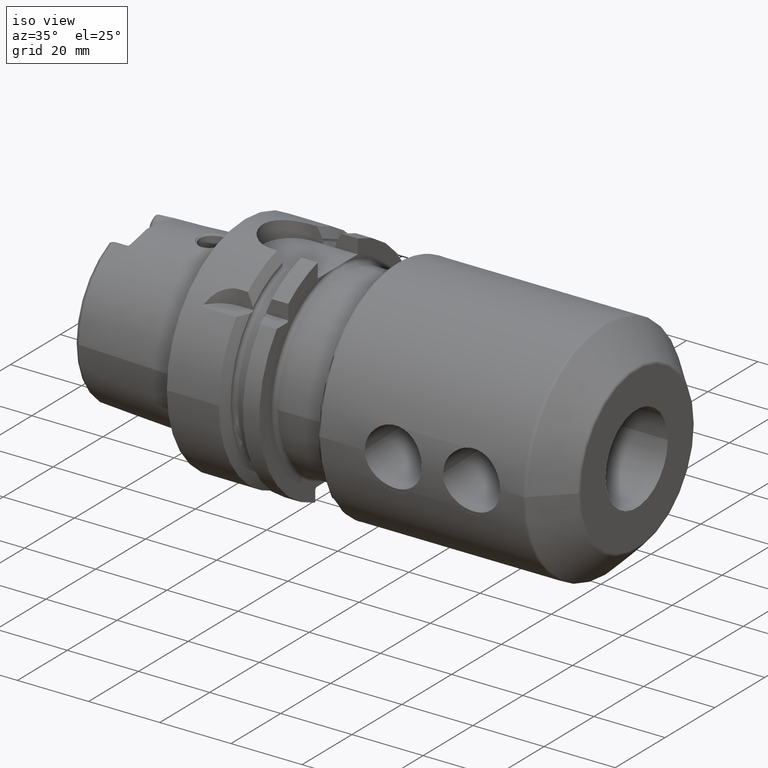
[diagram: clean part render]
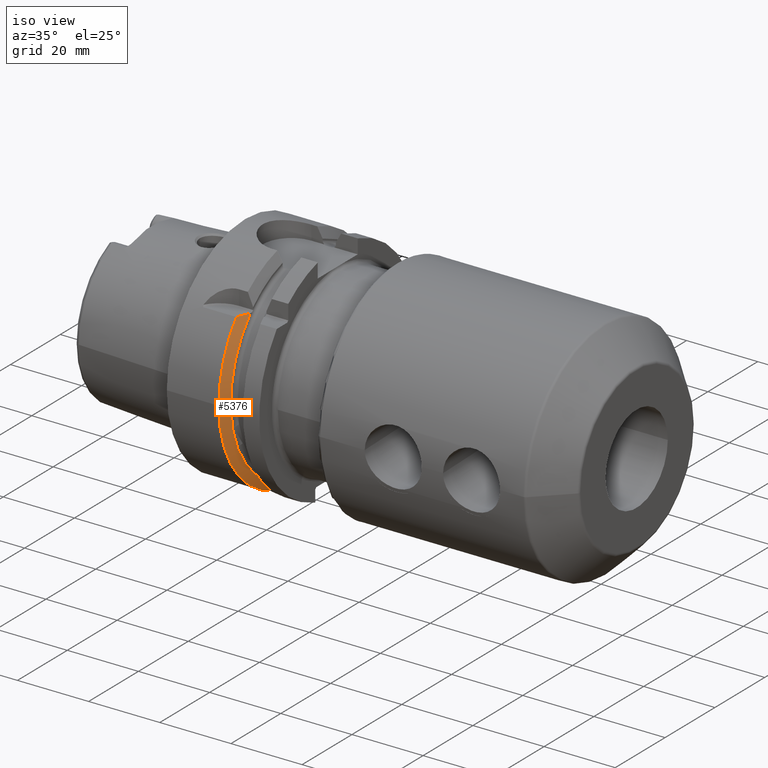
[diagram: same view with one face highlighted and labeled with its STEP entity id]
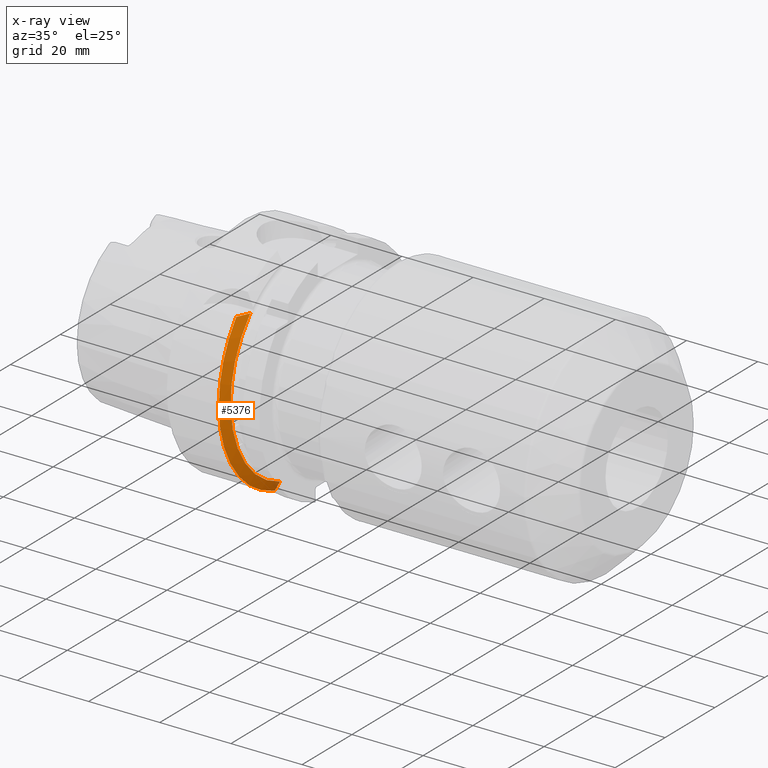
[diagram: x-ray of the same camera — body ghosted, the highlighted face saturated]
A machine part, iso view. The second image highlights one B-rep face of the part: STEP entity #5376.
The next image is the same camera in x-ray: the body ghosted, the highlighted face saturated — about 2% of this face is hidden behind the body in this view.
In plain terms, the highlighted conical surface has half-angle 60 deg.
Its self-contained STEP definition (entity closure, byte-faithful):
#1106=CARTESIAN_POINT('',(1.462250092524E1,0.E0,0.E0));
#1107=DIRECTION('',(1.E0,0.E0,0.E0));
#1108=DIRECTION('',(0.E0,-7.764663384879E-1,6.301587301587E-1));
#1109=AXIS2_PLACEMENT_3D('',#1106,#1107,#1108);
#1596=CARTESIAN_POINT('',(1.6125E1,-2.100115501712E1,1.985E1));
#1597=CARTESIAN_POINT('',(1.597384221917E1,-2.136140971936E1,1.985E1));
#1598=CARTESIAN_POINT('',(1.566115300621E1,-2.209786160622E1,1.985E1));
#1599=CARTESIAN_POINT('',(1.516255881786E1,-2.324577082409E1,1.985E1));
#1600=CARTESIAN_POINT('',(1.480632619355E1,-2.404863363206E1,1.985E1));
#1601=CARTESIAN_POINT('',(1.462250092524E1,-2.445868966237E1,1.985E1));
#1603=CARTESIAN_POINT('',(1.6125E1,0.E0,0.E0));
#1604=DIRECTION('',(1.E0,0.E0,0.E0));
#1605=DIRECTION('',(0.E0,-7.267440361428E-1,6.869083679290E-1));
#1606=AXIS2_PLACEMENT_3D('',#1603,#1604,#1605);
#1608=CARTESIAN_POINT('',(1.6125E1,-9.0175E0,-2.745461174016E1));
#1609=CARTESIAN_POINT('',(1.596600098125E1,-9.0175E0,-2.774448053791E1));
#1610=CARTESIAN_POINT('',(1.564270948849E1,-9.0175E0,-2.833297398512E1));
#1611=CARTESIAN_POINT('',(1.514210518984E1,-9.0175E0,-2.924158789478E1));
#1612=CARTESIAN_POINT('',(1.479749126019E1,-9.0175E0,-2.986536377611E1));
#1613=CARTESIAN_POINT('',(1.462250092524E1,-9.0175E0,-3.018169467989E1));
#1736=CARTESIAN_POINT('',(1.462250092524E1,0.E0,0.E0));
#1737=DIRECTION('',(1.E0,0.E0,0.E0));
#1738=DIRECTION('',(0.E0,-1.E0,0.E0));
#1739=AXIS2_PLACEMENT_3D('',#1736,#1737,#1738);
#3240=CARTESIAN_POINT('',(1.462250092524E1,-3.15E1,0.E0));
#3241=VERTEX_POINT('',#3240);
#3380=CARTESIAN_POINT('',(1.462250092524E1,-9.0175E0,-3.018169467989E1));
#3381=VERTEX_POINT('',#3380);
#3386=CARTESIAN_POINT('',(1.6125E1,-9.0175E0,-2.745461174016E1));
#3388=VERTEX_POINT('',#3386);
#3410=CARTESIAN_POINT('',(1.6125E1,-2.100115501712E1,1.985E1));
#3412=VERTEX_POINT('',#3410);
#3428=VERTEX_POINT('',#1601);
#5361=CARTESIAN_POINT('',(1.537375046262E1,0.E0,0.E0));
#5362=DIRECTION('',(-1.E0,0.E0,0.E0));
#5363=DIRECTION('',(0.E0,1.E0,0.E0));
#5364=AXIS2_PLACEMENT_3D('',#5361,#5362,#5363);
#5365=CONICAL_SURFACE('',#5364,3.019879763210E1,6.E1);
#5367=ORIENTED_EDGE('',*,*,#5366,.F.);
#5368=ORIENTED_EDGE('',*,*,#5282,.T.);
#5370=ORIENTED_EDGE('',*,*,#5369,.T.);
#5372=ORIENTED_EDGE('',*,*,#5371,.F.);
#5373=ORIENTED_EDGE('',*,*,#4797,.F.);
#5374=EDGE_LOOP('',(#5367,#5368,#5370,#5372,#5373));
#5375=FACE_OUTER_BOUND('',#5374,.F.);
#5376=ADVANCED_FACE('',(#5375),#5365,.T.);
#1110=CIRCLE('',#1109,3.15E1);
#1602=B_SPLINE_CURVE_WITH_KNOTS('',3,(#1596,#1597,#1598,#1599,#1600,#1601),
.UNSPECIFIED.,.F.,.F.,(4,1,1,4),(0.E0,3.333333333333E-1,6.666666666667E-1,1.E0),
.UNSPECIFIED.);
#1607=CIRCLE('',#1606,2.889759526419E1);
#1614=B_SPLINE_CURVE_WITH_KNOTS('',3,(#1608,#1609,#1610,#1611,#1612,#1613),
.UNSPECIFIED.,.F.,.F.,(4,1,1,4),(0.E0,3.333333333333E-1,6.666666666667E-1,1.E0),
.UNSPECIFIED.);
#1740=CIRCLE('',#1739,3.15E1);
#4797=EDGE_CURVE('',#3428,#3241,#1110,.T.);
#5282=EDGE_CURVE('',#3412,#3388,#1607,.T.);
#5366=EDGE_CURVE('',#3412,#3428,#1602,.T.);
#5369=EDGE_CURVE('',#3388,#3381,#1614,.T.);
#5371=EDGE_CURVE('',#3241,#3381,#1740,.T.);